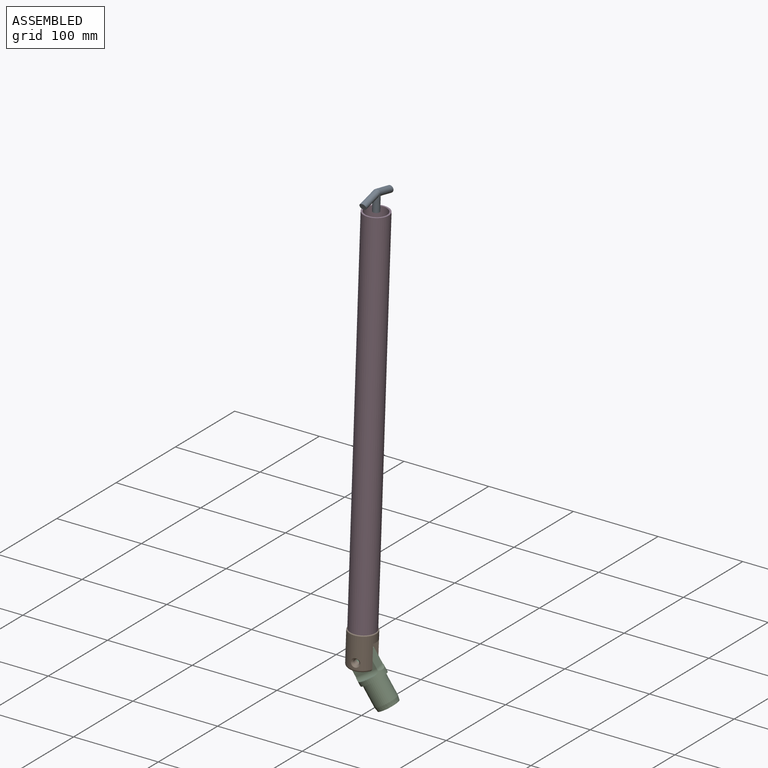
[diagram: assembled view]
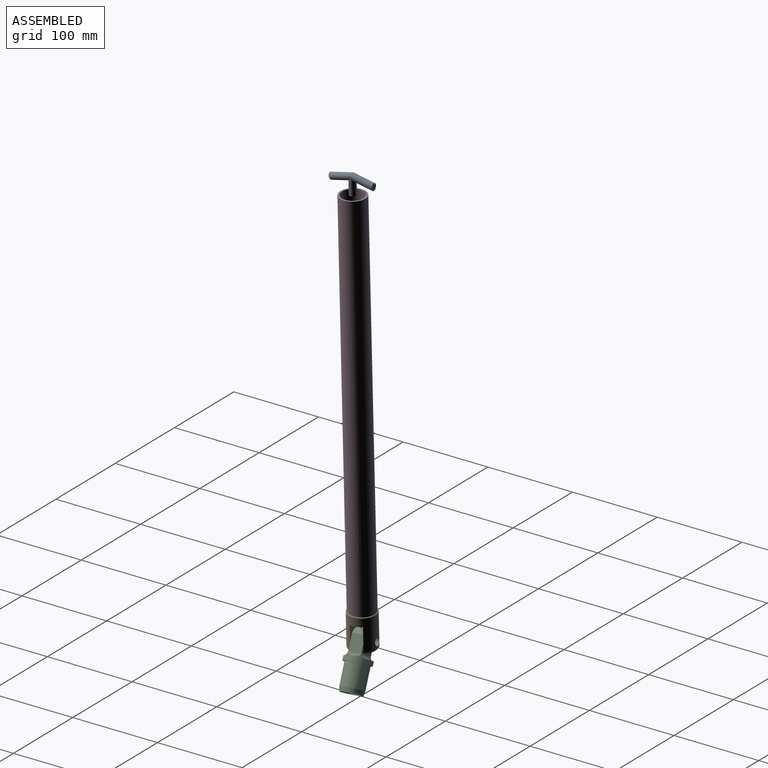
[diagram: assembled view, second angle]
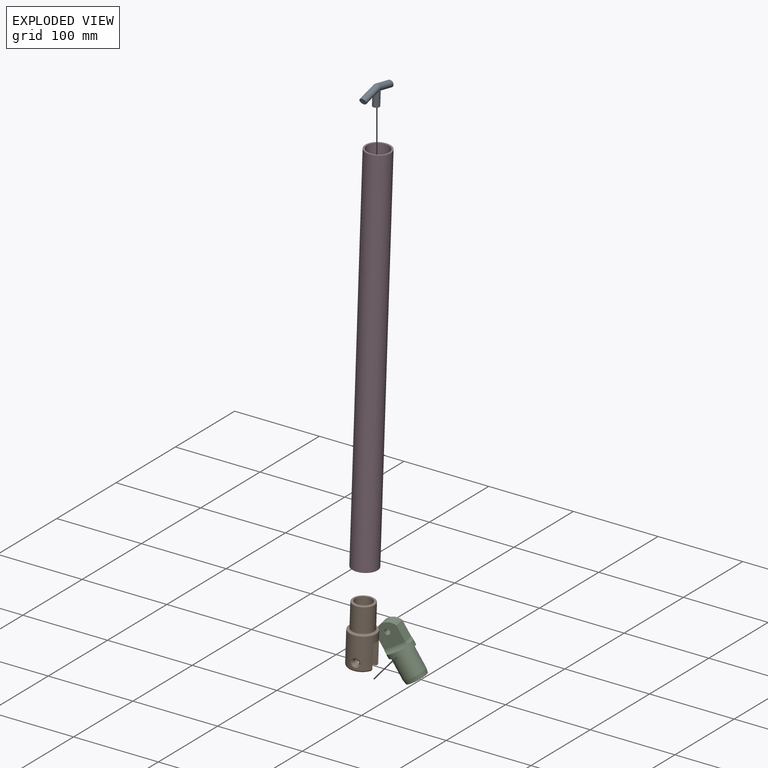
[diagram: exploded view]
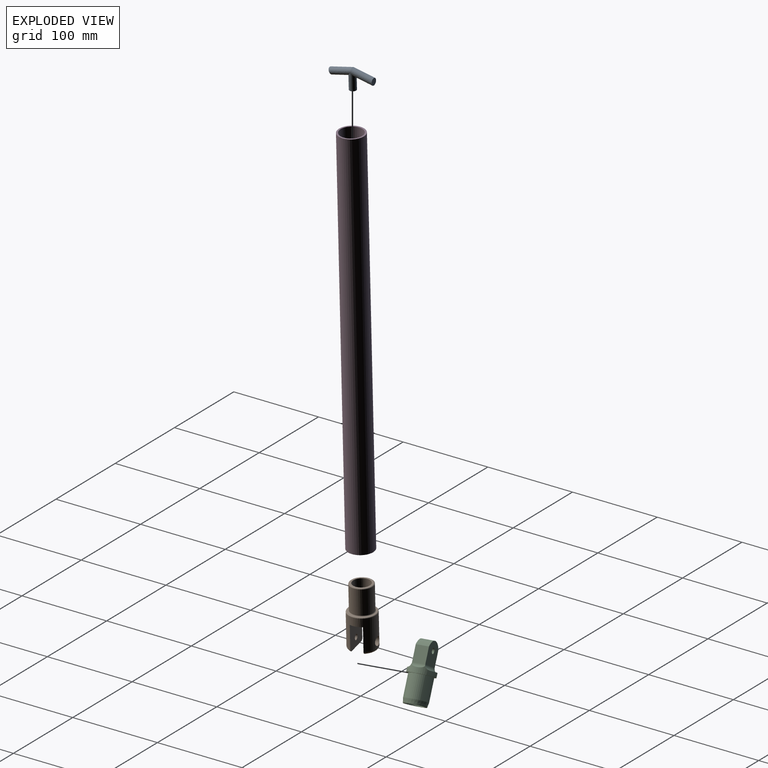
[diagram: exploded view, second angle]
ASSEMBLY  parts=4 mates=5
PART A: 6 faces, bbox 52.2x28.1x8 mm
  f0: bspline ~24.39x21.5mm, area 589.3mm2, adj f1,f2,f4
  f1: bspline ~35.14x20.83mm, area 589.3mm2, adj f0,f3,f4
  f2: plane 8x8mm, normal (1,0,0), area 50.3mm2, adj f0
  f3: plane 8x7.22mm, normal (-0.9,-0.43,0), area 50.3mm2, adj f1
  f4: cylinder r=4mm len=20mm, axis (0,1,0), area 424.2mm2, adj f0,f1,f5
  f5: plane 8x8mm, normal (0,-1,0), area 50.3mm2, adj f4
PART B: 23 faces, bbox 34.6x70x34.6 mm
  f0: cylinder r=16mm len=36mm, axis (0,1,0), area 2677.7mm2, adj f8,f9,f10,f11,f12,f13,f18,f19
  f1: cylinder r=3.1mm len=6.2mm, axis (1,0,0), area 77.9mm2, adj f9,f22
  f2: cylinder r=3.1mm len=6.3mm, axis (1,0,0), area 122.7mm2, adj f10,f20
  f3: plane 21.91x6mm, normal (0,-1,0), area 92.7mm2, adj f9,f12
  f4: cylinder r=12.9mm len=28mm, axis (0,-1,0), area 2269.5mm2, adj f14,f15
  f5: plane 23.8x23.8mm, normal (0,1,0), area 130.7mm2, adj f14,f16
  f6: plane 21.91x6mm, normal (0,-1,0), area 92.7mm2, adj f10,f11
  f7: plane 30x30mm, normal (0,1,0), area 99.9mm2, adj f13,f15
  f8: plane 32x14mm, normal (0,-1,0), area 433.3mm2, adj f0,f9,f10
  f9: plane 30x28.78mm, normal (-1,0,0), area 828.7mm2, adj f0,f1,f3,f8,f12
  f10: plane 30x28.78mm, normal (1,0,0), area 828.7mm2, adj f0,f2,f6,f8,f11
  f11: torus R=13mm, axis (0,-1,0), area 152mm2, adj f0,f6,f10
  f12: torus R=13mm, axis (0,-1,0), area 152mm2, adj f0,f3,f9
  f13: torus R=15mm, axis (0,-1,0), area 154.3mm2, adj f0,f7
  f14: torus R=11.9mm, axis (0,-1,0), area 123.7mm2, adj f4,f5
  f15: torus R=13.9mm, axis (0,-1,0), area 130.9mm2, adj f4,f7
  f16: cylinder r=10mm len=25mm, axis (0,1,0), area 1570.8mm2, adj f5,f17
  f17: plane 20x20mm, normal (0,1,0), area 314.2mm2, adj f16
  f18: cylinder r=5mm len=10mm, axis (-1,0,0), area 6.3mm2, adj f0,f20
  f19: cylinder r=5mm len=10mm, axis (-1,0,0), area 6.3mm2, adj f0,f20
  f20: cone r=3.05mm half-angle=45deg, axis (-1,0,0), area 68.4mm2, adj f2,f18,f19
  f21: cylinder r=5mm len=10mm, axis (1,0,0), area 144.6mm2, adj f0,f22
  f22: plane 10x10mm, normal (1,0,0), area 48.3mm2, adj f1,f21
PART C: 19 faces, bbox 30x65x30 mm
  f0: cylinder r=12.9mm len=25.8mm, axis (0,-1,0), area 2026.3mm2, adj f2,f10
  f1: plane 24.04x24.04mm, normal (0,1,0), area 139.6mm2, adj f2,f3
  f2: cone r=12.9mm half-angle=10deg, axis (0,-1,0), area 397.5mm2, adj f0,f1
  f3: cylinder r=10mm len=30mm, axis (0,1,0), area 1885mm2, adj f1,f18
  f4: cylinder r=5mm len=14.48mm, axis (0,0,1), area 56mm2, adj f6,f7,f11,f15
  f5: cylinder r=5mm len=14.48mm, axis (0,0,-1), area 56mm2, adj f6,f7,f11,f12
  f6: cylinder r=5mm len=26.28mm, axis (1,0,0), area 187.4mm2, adj f4,f5,f11,f13,f16
  f7: cylinder r=5mm len=26.28mm, axis (-1,0,0), area 187.4mm2, adj f4,f5,f11,f14,f17
  f8: cylinder r=3.1mm len=14mm, axis (0,0,-1), area 272.7mm2, adj f13,f14
  f9: cylinder r=15mm len=25.8mm, axis (0,0,-1), area 434.8mm2, adj f12,f13,f14,f15
  f10: plane 30x30mm, normal (0,1,0), area 184.1mm2, adj f0,f11
  f11: cylinder r=15mm len=30mm, axis (0,1,0), area 539.9mm2, adj f4,f5,f6,f7,f10,f16,f17
  f12: plane 17.65x14mm, normal (-1,0,0), area 247.2mm2, adj f5,f9,f13,f14
  f13: plane 25.8x25mm, normal (0,0,-1), area 559.5mm2, adj f6,f8,f9,f12,f15
  f14: plane 25.8x25mm, normal (0,0,1), area 559.5mm2, adj f7,f8,f9,f12,f15
  f15: plane 17.65x14mm, normal (1,0,0), area 247.2mm2, adj f4,f9,f13,f14
  f16: plane 18x3mm, normal (0,-1,0), area 36.8mm2, adj f6,f11
  f17: plane 18x3mm, normal (0,-1,0), area 36.8mm2, adj f7,f11
  f18: plane 20x20mm, normal (0,1,0), area 314.2mm2, adj f3
PART D: 4 faces, bbox 450x30x30 mm
  f0: cylinder r=13mm len=450mm, axis (-1,0,0), area 36756.6mm2, adj f2,f3
  f1: cylinder r=15mm len=450mm, axis (-1,0,0), area 42411.5mm2, adj f2,f3
  f2: plane 30x30mm, normal (1,0,0), area 175.9mm2, adj f0,f1
  f3: plane 30x30mm, normal (-1,0,0), area 175.9mm2, adj f0,f1
PLACE A rot(axis=(0.57,0.59,0.57),122.6deg) t=(16.54,1.88,506.73)mm
PLACE B rot(axis=(0.51,0.62,0.6),127.8deg) t=(0.13,1.88,37.01)mm fixed
PLACE C rot(axis=(0.13,0.72,-0.68),150.9deg) t=(11.62,4.48,-14.45)mm
PLACE D rot(axis=(0.69,0.13,-0.71),166deg) t=(-44.67,-160.19,488.85)mm
MATE planar C.f13 <-> B.f9  axis (-0.19,0.98,0.01) through (-10.05,7.31,-4.83)mm
MATE cylindrical C.f8 <-> B.f1  axis (0.19,-0.98,-0.01) through (0.43,-4.99,6.99)mm
MATE revolute A.f4 <-> D.f0  axis (-0.03,0,-1) through (15.84,1.88,486.74)mm
MATE planar D.f0 <-> A.f4  axis (0.03,0,1) through (15.84,1.88,486.74)mm
MATE revolute D.f0 <-> B.f0  axis (-0.03,0,-1) through (0.13,1.88,37.01)mm
